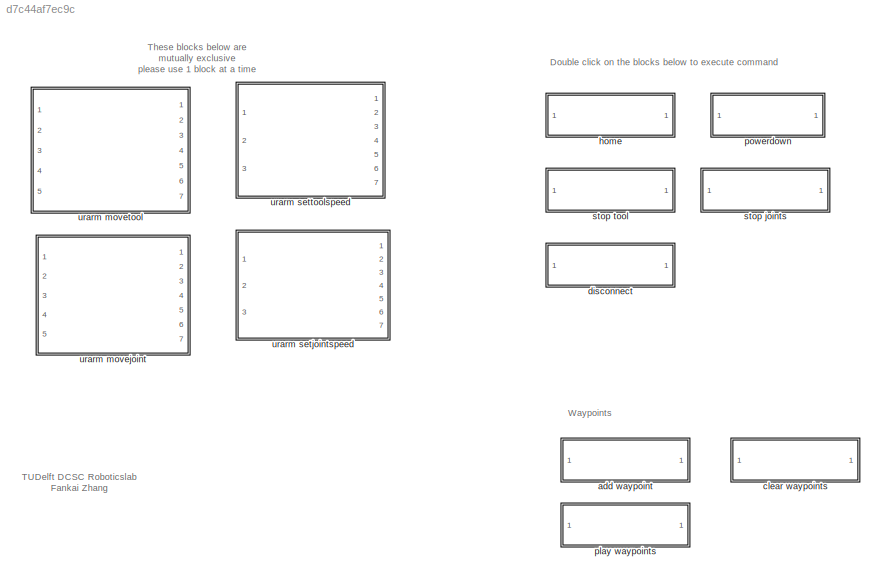
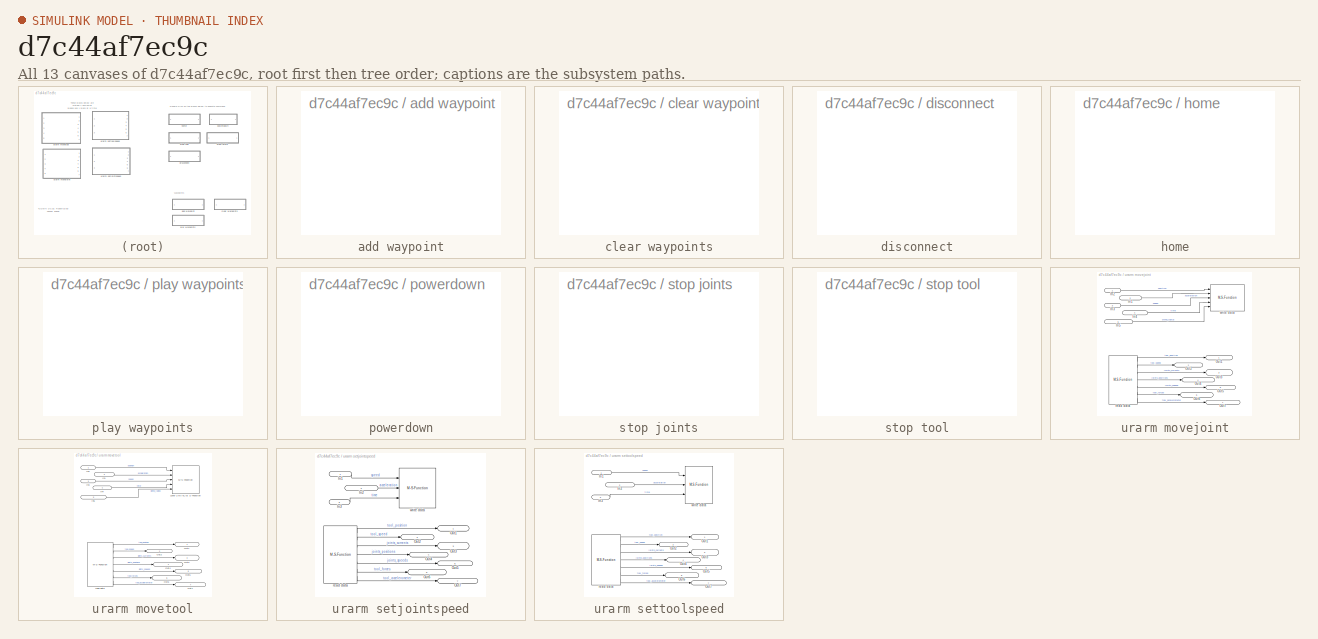
[diagram: thumbnail index - all 13 canvases of the model, root first then tree order]
MODEL slx_d7c44af7ec9c
KIND library
BLOCK [SubSystem] add waypoint
  FunctionWithSeparateData = off
  MaskHideContents = off
  MinAlgLoopOccurrences = off
  Opaque = off
  OpenFcn = if exist('URARM_HANDLE','var') && ~isempty(URARM_HANDLE)\nURARM_HANDLE.appendWaypoint();                          \nend
  Ports = []
  PropExecContextOutsideSubsystem = off
  RTWSystemCode = Auto
  RequestExecContextInheritance = off
BLOCK [SubSystem] clear waypoints
  FunctionWithSeparateData = off
  MaskHideContents = off
  MinAlgLoopOccurrences = off
  Opaque = off
  OpenFcn = if exist('URARM_HANDLE','var') && ~isempty(URARM_HANDLE)\nURARM_HANDLE.clearWaypoints();                          \nend
  Ports = []
  PropExecContextOutsideSubsystem = off
  RTWSystemCode = Auto
  RequestExecContextInheritance = off
BLOCK [SubSystem] disconnect
  FunctionWithSeparateData = off
  MaskHideContents = off
  MinAlgLoopOccurrences = off
  Opaque = off
  OpenFcn = if exist('URARM_HANDLE','var') && ~isempty(URARM_HANDLE)\nURARM_HANDLE.fclose();                                  \nend
  Ports = []
  PropExecContextOutsideSubsystem = off
  RTWSystemCode = Auto
  RequestExecContextInheritance = off
BLOCK [SubSystem] home
  FunctionWithSeparateData = off
  MaskHideContents = off
  MinAlgLoopOccurrences = off
  Opaque = off
  OpenFcn = if exist('URARM_HANDLE','var') && ~isempty(URARM_HANDLE)\nURARM_HANDLE.home();                                    \nend
  Ports = []
  PropExecContextOutsideSubsystem = off
  RTWSystemCode = Auto
  RequestExecContextInheritance = off
BLOCK [SubSystem] play waypoints
  FunctionWithSeparateData = off
  MaskHideContents = off
  MinAlgLoopOccurrences = off
  Opaque = off
  OpenFcn = if exist('URARM_HANDLE','var') && ~isempty(URARM_HANDLE)\nURARM_HANDLE.playWaypoints();                           \nend
  Ports = []
  PropExecContextOutsideSubsystem = off
  RTWSystemCode = Auto
  RequestExecContextInheritance = off
BLOCK [SubSystem] powerdown
  FunctionWithSeparateData = off
  MaskHideContents = off
  MinAlgLoopOccurrences = off
  Opaque = off
  OpenFcn = if exist('URARM_HANDLE','var') && ~isempty(URARM_HANDLE)\nURARM_HANDLE.powerdown();                               \nend
  Ports = []
  PropExecContextOutsideSubsystem = off
  RTWSystemCode = Auto
  RequestExecContextInheritance = off
BLOCK [SubSystem] stop joints
  FunctionWithSeparateData = off
  MaskHideContents = off
  MinAlgLoopOccurrences = off
  Opaque = off
  OpenFcn = if exist('URARM_HANDLE','var') && ~isempty(URARM_HANDLE)\nURARM_HANDLE.stopJoints();                              \nend
  Ports = []
  PropExecContextOutsideSubsystem = off
  RTWSystemCode = Auto
  RequestExecContextInheritance = off
BLOCK [SubSystem] stop tool
  FunctionWithSeparateData = off
  MaskHideContents = off
  MinAlgLoopOccurrences = off
  Opaque = off
  OpenFcn = if exist('URARM_HANDLE','var') && ~isempty(URARM_HANDLE)\nURARM_HANDLE.stopTool();                                \nend
  Ports = []
  PropExecContextOutsideSubsystem = off
  RTWSystemCode = Auto
  RequestExecContextInheritance = off
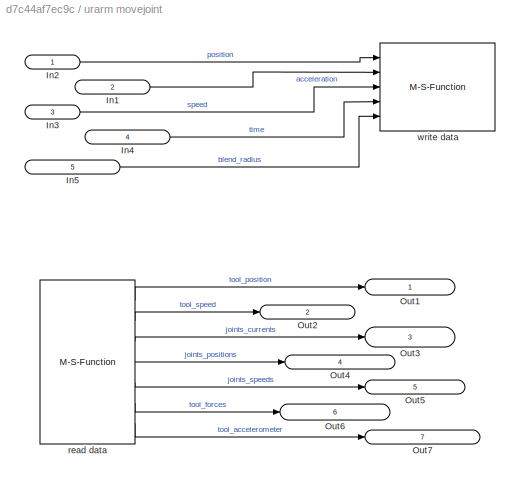
BLOCK [SubSystem] urarm movejoint
  FunctionWithSeparateData = off
  MaskHideContents = off
  MinAlgLoopOccurrences = off
  Opaque = off
  Ports = [5, 7]
  PropExecContextOutsideSubsystem = off
  RTWSystemCode = Auto
  RequestExecContextInheritance = off
BLOCK [Inport] urarm movejoint/In1
  IconDisplay = Port number and signal name
  Port = 2
BLOCK [Inport] urarm movejoint/In2
  IconDisplay = Port number and signal name
BLOCK [Inport] urarm movejoint/In3
  IconDisplay = Port number and signal name
  Port = 3
BLOCK [Inport] urarm movejoint/In4
  IconDisplay = Port number and signal name
  Port = 4
BLOCK [Inport] urarm movejoint/In5
  IconDisplay = Port number and signal name
  Port = 5
BLOCK [Outport] urarm movejoint/Out1
  IconDisplay = Port number and signal name
BLOCK [Outport] urarm movejoint/Out2
  IconDisplay = Port number and signal name
  Port = 2
BLOCK [Outport] urarm movejoint/Out3
  IconDisplay = Port number and signal name
  Port = 3
BLOCK [Outport] urarm movejoint/Out4
  IconDisplay = Port number and signal name
  Port = 4
BLOCK [Outport] urarm movejoint/Out5
  IconDisplay = Port number and signal name
  Port = 5
BLOCK [Outport] urarm movejoint/Out6
  IconDisplay = Port number and signal name
  Port = 6
BLOCK [Outport] urarm movejoint/Out7
  IconDisplay = Port number and signal name
  Port = 7
BLOCK [M-S-Function] urarm movejoint/read data
  FunctionName = sf_urarm_in
  Parameters = URARM_HANDLE
  Ports = [0, 7]
BLOCK [M-S-Function] urarm movejoint/write data
  FunctionName = sf_urarm_movejoint
  Parameters = URARM_HANDLE,Ts
  Ports = [5]
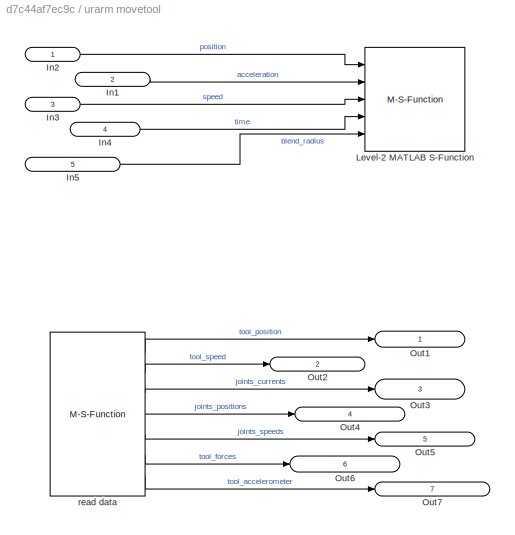
BLOCK [SubSystem] urarm movetool
  FunctionWithSeparateData = off
  MaskHideContents = off
  MinAlgLoopOccurrences = off
  Opaque = off
  Ports = [5, 7]
  PropExecContextOutsideSubsystem = off
  RTWSystemCode = Auto
  RequestExecContextInheritance = off
BLOCK [Inport] urarm movetool/In1
  IconDisplay = Port number and signal name
  Port = 2
BLOCK [Inport] urarm movetool/In2
  IconDisplay = Port number and signal name
BLOCK [Inport] urarm movetool/In3
  IconDisplay = Port number and signal name
  Port = 3
BLOCK [Inport] urarm movetool/In4
  IconDisplay = Port number and signal name
  Port = 4
BLOCK [Inport] urarm movetool/In5
  IconDisplay = Port number and signal name
  Port = 5
BLOCK [M-S-Function] urarm movetool/Level-2 MATLAB S-Function
  FunctionName = sf_urarm_movetool
  Parameters = URARM_HANDLE,Ts
  Ports = [5]
BLOCK [Outport] urarm movetool/Out1
  IconDisplay = Port number and signal name
BLOCK [Outport] urarm movetool/Out2
  IconDisplay = Port number and signal name
  Port = 2
BLOCK [Outport] urarm movetool/Out3
  IconDisplay = Port number and signal name
  Port = 3
BLOCK [Outport] urarm movetool/Out4
  IconDisplay = Port number and signal name
  Port = 4
BLOCK [Outport] urarm movetool/Out5
  IconDisplay = Port number and signal name
  Port = 5
BLOCK [Outport] urarm movetool/Out6
  IconDisplay = Port number and signal name
  Port = 6
BLOCK [Outport] urarm movetool/Out7
  IconDisplay = Port number and signal name
  Port = 7
BLOCK [M-S-Function] urarm movetool/read data
  FunctionName = sf_urarm_in
  Parameters = URARM_HANDLE
  Ports = [0, 7]
BLOCK [SubSystem] urarm setjointspeed
  FunctionWithSeparateData = off
  MaskHideContents = off
  MinAlgLoopOccurrences = off
  Opaque = off
  Ports = [3, 7]
  PropExecContextOutsideSubsystem = off
  RTWSystemCode = Auto
  RequestExecContextInheritance = off
BLOCK [Inport] urarm setjointspeed/In1
  IconDisplay = Port number and signal name
BLOCK [Inport] urarm setjointspeed/In2
  IconDisplay = Port number and signal name
  Port = 2
BLOCK [Inport] urarm setjointspeed/In3
  IconDisplay = Port number and signal name
  Port = 3
BLOCK [Outport] urarm setjointspeed/Out1
  IconDisplay = Port number and signal name
BLOCK [Outport] urarm setjointspeed/Out2
  IconDisplay = Port number and signal name
  Port = 2
BLOCK [Outport] urarm setjointspeed/Out3
  IconDisplay = Port number and signal name
  Port = 3
BLOCK [Outport] urarm setjointspeed/Out4
  IconDisplay = Port number and signal name
  Port = 4
BLOCK [Outport] urarm setjointspeed/Out5
  IconDisplay = Port number and signal name
  Port = 5
BLOCK [Outport] urarm setjointspeed/Out6
  IconDisplay = Port number and signal name
  Port = 6
BLOCK [Outport] urarm setjointspeed/Out7
  IconDisplay = Port number and signal name
  Port = 7
BLOCK [M-S-Function] urarm setjointspeed/read data
  FunctionName = sf_urarm_in
  Parameters = URARM_HANDLE
  Ports = [0, 7]
BLOCK [M-S-Function] urarm setjointspeed/write data
  FunctionName = sf_urarm_setspeed
  Parameters = URARM_HANDLE,Ts
  Ports = [3]
BLOCK [SubSystem] urarm settoolspeed
  FunctionWithSeparateData = off
  MaskHideContents = off
  MinAlgLoopOccurrences = off
  Opaque = off
  Ports = [3, 7]
  PropExecContextOutsideSubsystem = off
  RTWSystemCode = Auto
  RequestExecContextInheritance = off
BLOCK [Inport] urarm settoolspeed/In1
  IconDisplay = Port number and signal name
BLOCK [Inport] urarm settoolspeed/In2
  IconDisplay = Port number and signal name
  Port = 2
BLOCK [Inport] urarm settoolspeed/In3
  IconDisplay = Port number and signal name
  Port = 3
BLOCK [Outport] urarm settoolspeed/Out1
  IconDisplay = Port number and signal name
BLOCK [Outport] urarm settoolspeed/Out2
  IconDisplay = Port number and signal name
  Port = 2
BLOCK [Outport] urarm settoolspeed/Out3
  IconDisplay = Port number and signal name
  Port = 3
BLOCK [Outport] urarm settoolspeed/Out4
  IconDisplay = Port number and signal name
  Port = 4
BLOCK [Outport] urarm settoolspeed/Out5
  IconDisplay = Port number and signal name
  Port = 5
BLOCK [Outport] urarm settoolspeed/Out6
  IconDisplay = Port number and signal name
  Port = 6
BLOCK [Outport] urarm settoolspeed/Out7
  IconDisplay = Port number and signal name
  Port = 7
BLOCK [M-S-Function] urarm settoolspeed/read data
  FunctionName = sf_urarm_in
  Parameters = URARM_HANDLE
  Ports = [0, 7]
BLOCK [M-S-Function] urarm settoolspeed/write data
  FunctionName = sf_urarm_settool
  Parameters = URARM_HANDLE,Ts
  Ports = [3]
ANNOTATION (root): Double click on the blocks below to execute command
ANNOTATION (root): TUDelft DCSC Roboticslab Fankai Zhang
ANNOTATION (root): These blocks below are mutually exclusive please use 1 block at a time
ANNOTATION (root): Waypoints
LINE urarm movejoint/In1:1 -> urarm movejoint/write data:2
LINE urarm movejoint/In2:1 -> urarm movejoint/write data:1
LINE urarm movejoint/In3:1 -> urarm movejoint/write data:3
LINE urarm movejoint/In4:1 -> urarm movejoint/write data:4
LINE urarm movejoint/In5:1 -> urarm movejoint/write data:5
LINE urarm movejoint/read data:1 -> urarm movejoint/Out1:1
LINE urarm movejoint/read data:2 -> urarm movejoint/Out2:1
LINE urarm movejoint/read data:3 -> urarm movejoint/Out3:1
LINE urarm movejoint/read data:4 -> urarm movejoint/Out4:1
LINE urarm movejoint/read data:5 -> urarm movejoint/Out5:1
LINE urarm movejoint/read data:6 -> urarm movejoint/Out6:1
LINE urarm movejoint/read data:7 -> urarm movejoint/Out7:1
LINE urarm movetool/In1:1 -> urarm movetool/Level-2 MATLAB S-Function:2
LINE urarm movetool/In2:1 -> urarm movetool/Level-2 MATLAB S-Function:1
LINE urarm movetool/In3:1 -> urarm movetool/Level-2 MATLAB S-Function:3
LINE urarm movetool/In4:1 -> urarm movetool/Level-2 MATLAB S-Function:4
LINE urarm movetool/In5:1 -> urarm movetool/Level-2 MATLAB S-Function:5
LINE urarm movetool/read data:1 -> urarm movetool/Out1:1
LINE urarm movetool/read data:2 -> urarm movetool/Out2:1
LINE urarm movetool/read data:3 -> urarm movetool/Out3:1
LINE urarm movetool/read data:4 -> urarm movetool/Out4:1
LINE urarm movetool/read data:5 -> urarm movetool/Out5:1
LINE urarm movetool/read data:6 -> urarm movetool/Out6:1
LINE urarm movetool/read data:7 -> urarm movetool/Out7:1
LINE urarm setjointspeed/In1:1 -> urarm setjointspeed/write data:1
LINE urarm setjointspeed/In2:1 -> urarm setjointspeed/write data:2
LINE urarm setjointspeed/In3:1 -> urarm setjointspeed/write data:3
LINE urarm setjointspeed/read data:1 -> urarm setjointspeed/Out1:1
LINE urarm setjointspeed/read data:2 -> urarm setjointspeed/Out2:1
LINE urarm setjointspeed/read data:3 -> urarm setjointspeed/Out3:1
LINE urarm setjointspeed/read data:4 -> urarm setjointspeed/Out4:1
LINE urarm setjointspeed/read data:5 -> urarm setjointspeed/Out5:1
LINE urarm setjointspeed/read data:6 -> urarm setjointspeed/Out6:1
LINE urarm setjointspeed/read data:7 -> urarm setjointspeed/Out7:1
LINE urarm settoolspeed/In1:1 -> urarm settoolspeed/write data:1
LINE urarm settoolspeed/In2:1 -> urarm settoolspeed/write data:2
LINE urarm settoolspeed/In3:1 -> urarm settoolspeed/write data:3
LINE urarm settoolspeed/read data:1 -> urarm settoolspeed/Out1:1
LINE urarm settoolspeed/read data:2 -> urarm settoolspeed/Out2:1
LINE urarm settoolspeed/read data:3 -> urarm settoolspeed/Out3:1
LINE urarm settoolspeed/read data:4 -> urarm settoolspeed/Out4:1
LINE urarm settoolspeed/read data:5 -> urarm settoolspeed/Out5:1
LINE urarm settoolspeed/read data:6 -> urarm settoolspeed/Out6:1
LINE urarm settoolspeed/read data:7 -> urarm settoolspeed/Out7:1
